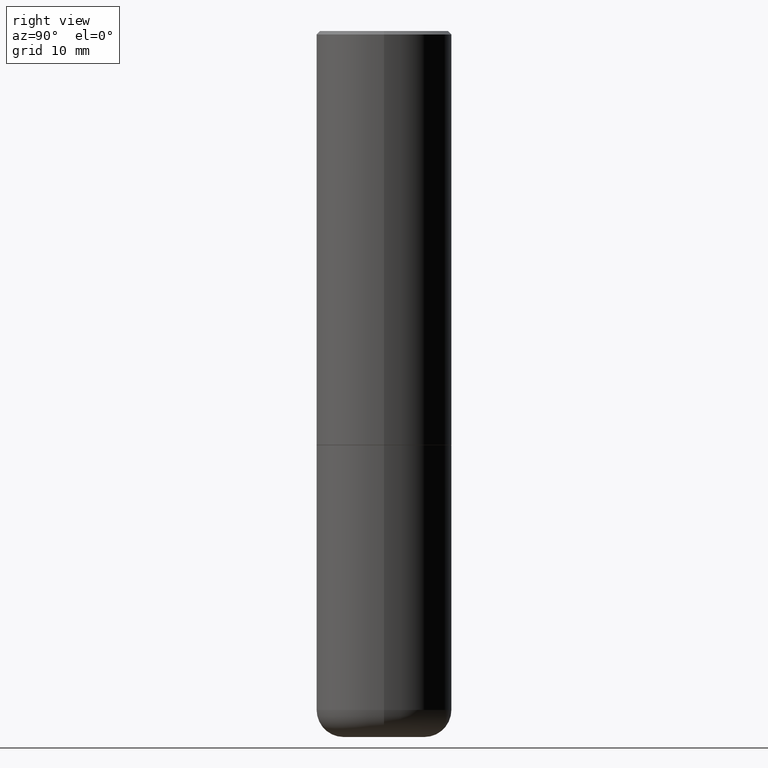
[diagram: clean part render]
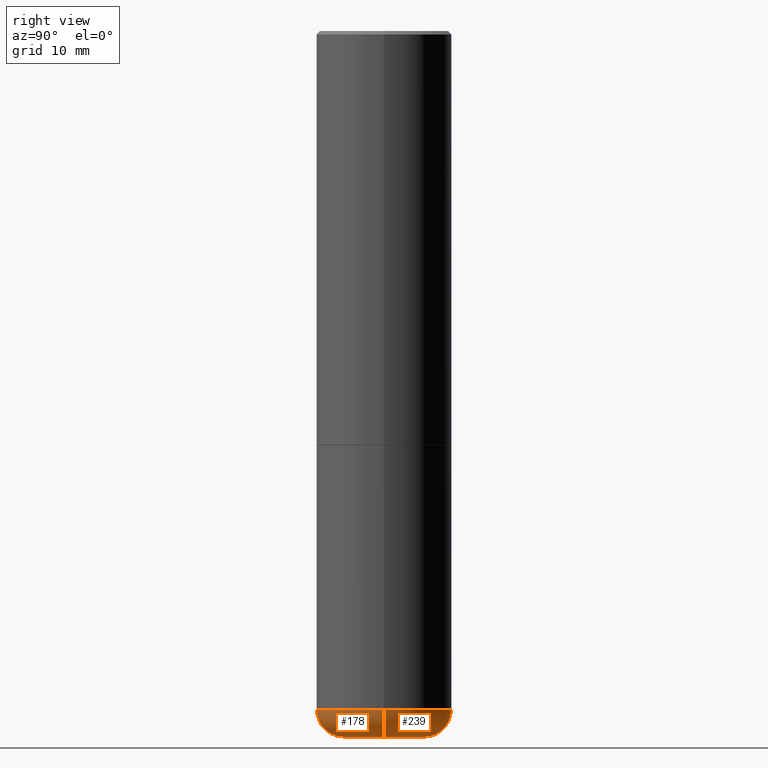
[diagram: same view with one multi-face feature highlighted, each face labeled with its STEP entity id]
A machine part, right view. The highlighted faces form ONE feature: a constant-radius fillet chain: 2 tangent blend faces with common blend radius 4.0005 mm. The faces share edges in the B-rep.
Their STEP definitions:
[1] entity #239 (Torus):
#20 = CARTESIAN_POINT ( 'NONE',  ( 0.2362000000000000210, -1.539533781549495994E-14, -3.937000000000000277 ) ) ;
#25 = ORIENTED_EDGE ( 'NONE', *, *, #41, .T. ) ;
#41 = EDGE_CURVE ( 'NONE', #104, #337, #240, .T. ) ;
#47 = AXIS2_PLACEMENT_3D ( 'NONE', #50, #83, #400 ) ;
#50 = CARTESIAN_POINT ( 'NONE',  ( -0.2362000000000000210, -1.206766008916010702E-14, -3.937000000000000277 ) ) ;
#62 = DIRECTION ( 'NONE',  ( -2.445468806185136597E-29, 3.491481338843145583E-15, 1.000000000000000000 ) ) ;
#76 = CARTESIAN_POINT ( 'NONE',  ( 9.627810689950883669E-29, -1.374596203102546341E-14, -3.937000000000000277 ) ) ;
#79 = CIRCLE ( 'NONE', #301, 0.1575000000000000566 ) ;
#83 = DIRECTION ( 'NONE',  ( 7.105427357601001859E-15, 1.000000000000000000, -3.491481338843145583E-15 ) ) ;
#87 = DIRECTION ( 'NONE',  ( 1.000000000000000000, -6.982962677686272233E-15, 0.000000000000000000 ) ) ;
#88 = AXIS2_PLACEMENT_3D ( 'NONE', #76, #199, #102 ) ;
#91 = DIRECTION ( 'NONE',  ( 1.000000000000000000, -6.982962677686267499E-15, 0.000000000000000000 ) ) ;
#102 = DIRECTION ( 'NONE',  ( 1.000000000000000000, -6.982962677686266711E-15, 4.883557194083112340E-29 ) ) ;
#104 = VERTEX_POINT ( 'NONE', #158 ) ;
#105 = AXIS2_PLACEMENT_3D ( 'NONE', #150, #247, #91 ) ;
#111 = EDGE_CURVE ( 'NONE', #307, #337, #358, .T. ) ;
#129 = CIRCLE ( 'NONE', #278, 0.2362000000000000766 ) ;
#150 = CARTESIAN_POINT ( 'NONE',  ( 9.627810689950883669E-29, -1.374596203102546341E-14, -3.937000000000000277 ) ) ;
#153 = ORIENTED_EDGE ( 'NONE', *, *, #397, .T. ) ;
#156 = DIRECTION ( 'NONE',  ( 1.000000000000000000, -6.982962677686270655E-15, 0.000000000000000000 ) ) ;
#158 = CARTESIAN_POINT ( 'NONE',  ( -0.2362000000000000766, -1.178306184018292647E-14, -4.094500000000000028 ) ) ;
#172 = FACE_OUTER_BOUND ( 'NONE', #191, .T. ) ;
#191 = EDGE_LOOP ( 'NONE', ( #153, #25, #354, #261 ) ) ;
#199 = DIRECTION ( 'NONE',  ( -2.445468806185136597E-29, 3.491481338843145583E-15, 1.000000000000000000 ) ) ;
#229 = CARTESIAN_POINT ( 'NONE',  ( 0.3937000000000001054, -1.649515443723054663E-14, -3.937000000000000277 ) ) ;
#239 = ADVANCED_FACE ( 'NONE', ( #172 ), #398, .T. ) ;
#240 = CIRCLE ( 'NONE', #47, 0.1575000000000000566 ) ;
#247 = DIRECTION ( 'NONE',  ( -2.445468806185136597E-29, 3.491481338843145583E-15, 1.000000000000000000 ) ) ;
#261 = ORIENTED_EDGE ( 'NONE', *, *, #383, .F. ) ;
#278 = AXIS2_PLACEMENT_3D ( 'NONE', #305, #62, #156 ) ;
#301 = AXIS2_PLACEMENT_3D ( 'NONE', #20, #375, #87 ) ;
#305 = CARTESIAN_POINT ( 'NONE',  ( 1.001297202692504215E-28, -1.429587034189326149E-14, -4.094500000000000028 ) ) ;
#307 = VERTEX_POINT ( 'NONE', #229 ) ;
#337 = VERTEX_POINT ( 'NONE', #349 ) ;
#349 = CARTESIAN_POINT ( 'NONE',  ( -0.3937000000000001054, -1.094855528033794942E-14, -3.937000000000000277 ) ) ;
#354 = ORIENTED_EDGE ( 'NONE', *, *, #111, .F. ) ;
#358 = CIRCLE ( 'NONE', #105, 0.3937000000000000499 ) ;
#375 = DIRECTION ( 'NONE',  ( -6.982962677686266711E-15, -1.000000000000000000, 3.491481338843145583E-15 ) ) ;
#383 = EDGE_CURVE ( 'NONE', #396, #307, #79, .T. ) ;
#396 = VERTEX_POINT ( 'NONE', #405 ) ;
#397 = EDGE_CURVE ( 'NONE', #396, #104, #129, .T. ) ;
#398 = TOROIDAL_SURFACE ( 'NONE', #88, 0.2362000000000000210, 0.1575000000000000844 ) ;
#400 = DIRECTION ( 'NONE',  ( -1.000000000000000000, 7.105427357601006592E-15, 0.000000000000000000 ) ) ;
#405 = CARTESIAN_POINT ( 'NONE',  ( 0.2362000000000000766, -1.594524612636275802E-14, -4.094500000000000028 ) ) ;
[2] entity #178 (Torus):
#20 = CARTESIAN_POINT ( 'NONE',  ( 0.2362000000000000210, -1.539533781549495994E-14, -3.937000000000000277 ) ) ;
#21 = DIRECTION ( 'NONE',  ( -2.445468806185136597E-29, 3.491481338843145583E-15, 1.000000000000000000 ) ) ;
#41 = EDGE_CURVE ( 'NONE', #104, #337, #240, .T. ) ;
#47 = AXIS2_PLACEMENT_3D ( 'NONE', #50, #83, #400 ) ;
#50 = CARTESIAN_POINT ( 'NONE',  ( -0.2362000000000000210, -1.206766008916010702E-14, -3.937000000000000277 ) ) ;
#71 = ORIENTED_EDGE ( 'NONE', *, *, #41, .F. ) ;
#79 = CIRCLE ( 'NONE', #301, 0.1575000000000000566 ) ;
#83 = DIRECTION ( 'NONE',  ( 7.105427357601001859E-15, 1.000000000000000000, -3.491481338843145583E-15 ) ) ;
#87 = DIRECTION ( 'NONE',  ( 1.000000000000000000, -6.982962677686272233E-15, 0.000000000000000000 ) ) ;
#96 = AXIS2_PLACEMENT_3D ( 'NONE', #106, #316, #99 ) ;
#99 = DIRECTION ( 'NONE',  ( 1.000000000000000000, -6.982962677686270655E-15, 0.000000000000000000 ) ) ;
#104 = VERTEX_POINT ( 'NONE', #158 ) ;
#106 = CARTESIAN_POINT ( 'NONE',  ( 1.001297202692504215E-28, -1.429587034189326149E-14, -4.094500000000000028 ) ) ;
#108 = DIRECTION ( 'NONE',  ( 1.000000000000000000, -6.982962677686267499E-15, 0.000000000000000000 ) ) ;
#137 = TOROIDAL_SURFACE ( 'NONE', #148, 0.2362000000000000210, 0.1575000000000000844 ) ;
#143 = CIRCLE ( 'NONE', #96, 0.2362000000000000766 ) ;
#148 = AXIS2_PLACEMENT_3D ( 'NONE', #215, #21, #275 ) ;
#158 = CARTESIAN_POINT ( 'NONE',  ( -0.2362000000000000766, -1.178306184018292647E-14, -4.094500000000000028 ) ) ;
#175 = DIRECTION ( 'NONE',  ( -2.445468806185136597E-29, 3.491481338843145583E-15, 1.000000000000000000 ) ) ;
#178 = ADVANCED_FACE ( 'NONE', ( #376 ), #137, .T. ) ;
#181 = AXIS2_PLACEMENT_3D ( 'NONE', #311, #175, #108 ) ;
#203 = ORIENTED_EDGE ( 'NONE', *, *, #383, .T. ) ;
#215 = CARTESIAN_POINT ( 'NONE',  ( 9.627810689950883669E-29, -1.374596203102546341E-14, -3.937000000000000277 ) ) ;
#229 = CARTESIAN_POINT ( 'NONE',  ( 0.3937000000000001054, -1.649515443723054663E-14, -3.937000000000000277 ) ) ;
#240 = CIRCLE ( 'NONE', #47, 0.1575000000000000566 ) ;
#246 = EDGE_CURVE ( 'NONE', #337, #307, #342, .T. ) ;
#273 = ORIENTED_EDGE ( 'NONE', *, *, #300, .T. ) ;
#275 = DIRECTION ( 'NONE',  ( 1.000000000000000000, -6.982962677686266711E-15, 4.883557194083112340E-29 ) ) ;
#300 = EDGE_CURVE ( 'NONE', #104, #396, #143, .T. ) ;
#301 = AXIS2_PLACEMENT_3D ( 'NONE', #20, #375, #87 ) ;
#307 = VERTEX_POINT ( 'NONE', #229 ) ;
#311 = CARTESIAN_POINT ( 'NONE',  ( 9.627810689950883669E-29, -1.374596203102546341E-14, -3.937000000000000277 ) ) ;
#316 = DIRECTION ( 'NONE',  ( -2.445468806185136597E-29, 3.491481338843145583E-15, 1.000000000000000000 ) ) ;
#337 = VERTEX_POINT ( 'NONE', #349 ) ;
#342 = CIRCLE ( 'NONE', #181, 0.3937000000000000499 ) ;
#349 = CARTESIAN_POINT ( 'NONE',  ( -0.3937000000000001054, -1.094855528033794942E-14, -3.937000000000000277 ) ) ;
#360 = ORIENTED_EDGE ( 'NONE', *, *, #246, .F. ) ;
#375 = DIRECTION ( 'NONE',  ( -6.982962677686266711E-15, -1.000000000000000000, 3.491481338843145583E-15 ) ) ;
#376 = FACE_OUTER_BOUND ( 'NONE', #386, .T. ) ;
#383 = EDGE_CURVE ( 'NONE', #396, #307, #79, .T. ) ;
#386 = EDGE_LOOP ( 'NONE', ( #71, #273, #203, #360 ) ) ;
#396 = VERTEX_POINT ( 'NONE', #405 ) ;
#400 = DIRECTION ( 'NONE',  ( -1.000000000000000000, 7.105427357601006592E-15, 0.000000000000000000 ) ) ;
#405 = CARTESIAN_POINT ( 'NONE',  ( 0.2362000000000000766, -1.594524612636275802E-14, -4.094500000000000028 ) ) ;